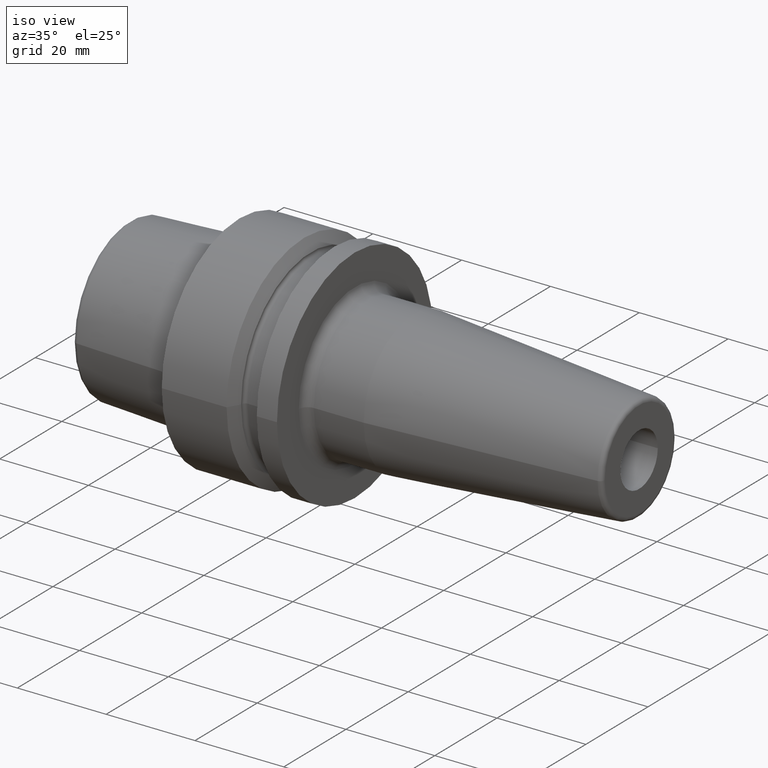
[diagram: clean part render]
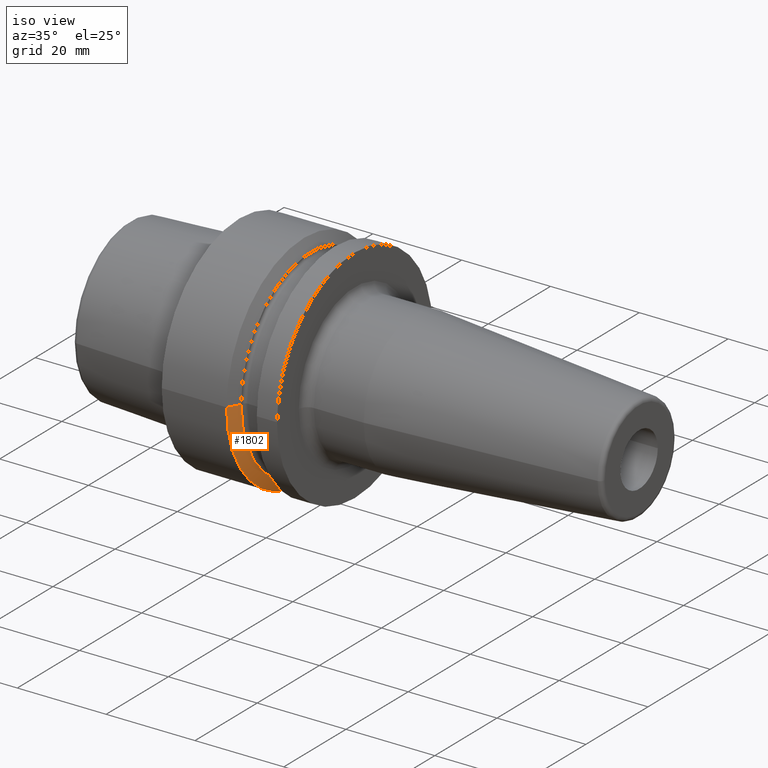
[diagram: same view with one face highlighted and labeled with its STEP entity id]
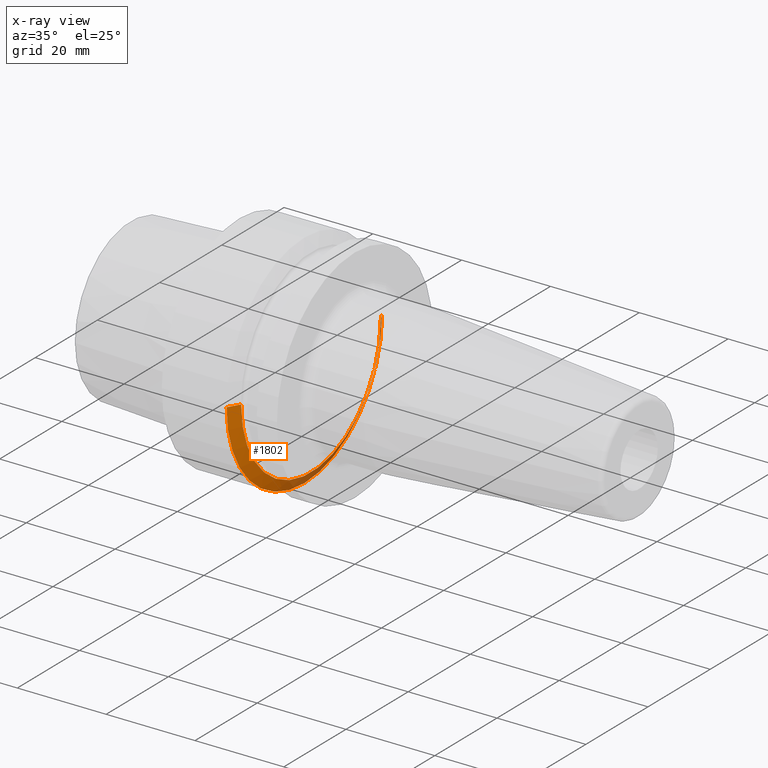
[diagram: x-ray of the same camera — body ghosted, the highlighted face saturated]
A machine part, iso view. The second image highlights one B-rep face of the part: STEP entity #1802.
The next image is the same camera in x-ray: the body ghosted, the highlighted face saturated — about 24% of this face is hidden behind the body in this view.
In plain terms, the highlighted conical surface has half-angle 60 deg.
Its self-contained STEP definition (entity closure, byte-faithful):
#573=CARTESIAN_POINT('',(1.60875E1,0.E0,0.E0));
#574=DIRECTION('',(-1.E0,0.E0,0.E0));
#575=DIRECTION('',(0.E0,1.E0,0.E0));
#576=AXIS2_PLACEMENT_3D('',#573,#574,#575);
#583=DIRECTION('',(5.E-1,-8.660254037844E-1,0.E0));
#584=VECTOR('',#583,2.958865662978E0);
#585=CARTESIAN_POINT('',(1.460806716851E1,2.5E1,0.E0));
#586=LINE('',#585,#584);
#587=DIRECTION('',(5.E-1,8.660254037844E-1,0.E0));
#588=VECTOR('',#587,2.958865662978E0);
#589=CARTESIAN_POINT('',(1.460806716851E1,-2.5E1,0.E0));
#590=LINE('',#589,#588);
#609=CARTESIAN_POINT('',(1.460806716851E1,0.E0,0.E0));
#610=DIRECTION('',(1.E0,0.E0,0.E0));
#611=DIRECTION('',(0.E0,-1.E0,0.E0));
#612=AXIS2_PLACEMENT_3D('',#609,#610,#611);
#792=CARTESIAN_POINT('',(1.60875E1,2.243754716948E1,0.E0));
#793=CARTESIAN_POINT('',(1.60875E1,-2.243754716948E1,0.E0));
#794=VERTEX_POINT('',#792);
#795=VERTEX_POINT('',#793);
#802=CARTESIAN_POINT('',(1.460806716851E1,2.5E1,0.E0));
#803=VERTEX_POINT('',#802);
#806=CARTESIAN_POINT('',(1.460806716851E1,-2.5E1,0.E0));
#807=VERTEX_POINT('',#806);
#1788=CARTESIAN_POINT('',(1.534778358426E1,0.E0,0.E0));
#1789=DIRECTION('',(-1.E0,0.E0,0.E0));
#1790=DIRECTION('',(0.E0,1.E0,0.E0));
#1791=AXIS2_PLACEMENT_3D('',#1788,#1789,#1790);
#1792=CONICAL_SURFACE('',#1791,2.371877358474E1,6.E1);
#1794=ORIENTED_EDGE('',*,*,#1793,.F.);
#1796=ORIENTED_EDGE('',*,*,#1795,.F.);
#1798=ORIENTED_EDGE('',*,*,#1797,.T.);
#1799=ORIENTED_EDGE('',*,*,#1777,.F.);
#1800=EDGE_LOOP('',(#1794,#1796,#1798,#1799));
#1801=FACE_OUTER_BOUND('',#1800,.F.);
#1802=ADVANCED_FACE('',(#1801),#1792,.T.);
#577=CIRCLE('',#576,2.243754716948E1);
#613=CIRCLE('',#612,2.5E1);
#1777=EDGE_CURVE('',#794,#795,#577,.T.);
#1793=EDGE_CURVE('',#803,#794,#586,.T.);
#1795=EDGE_CURVE('',#807,#803,#613,.T.);
#1797=EDGE_CURVE('',#807,#795,#590,.T.);